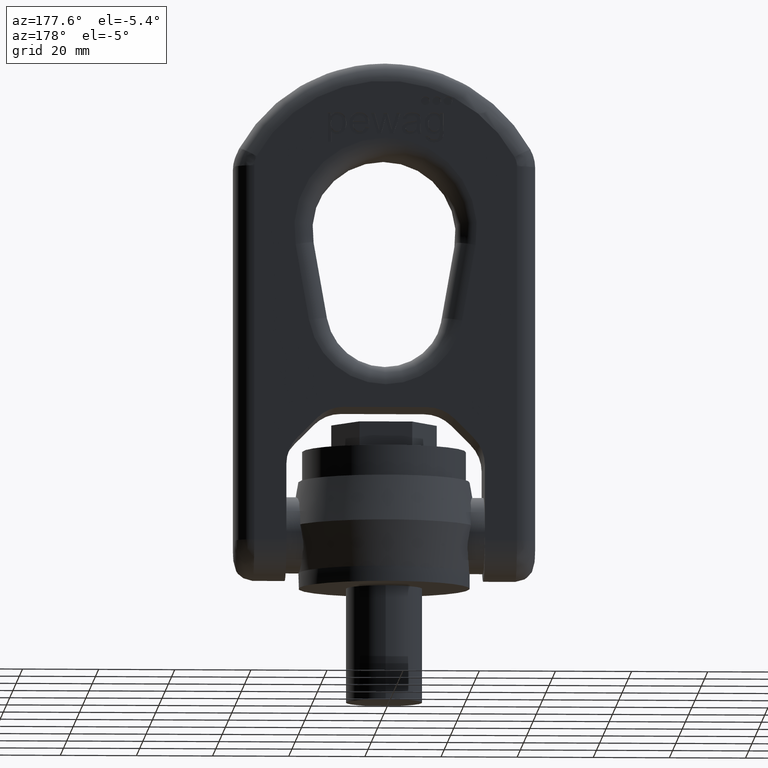
[diagram: clean part render]
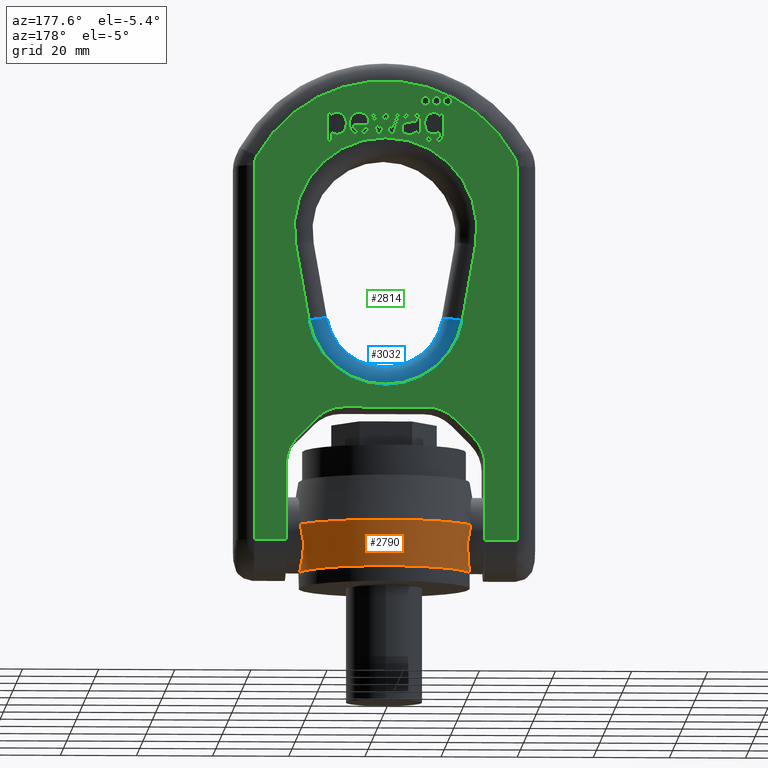
[diagram: same view with three faces highlighted in distinct colors, each labeled with its STEP entity id]
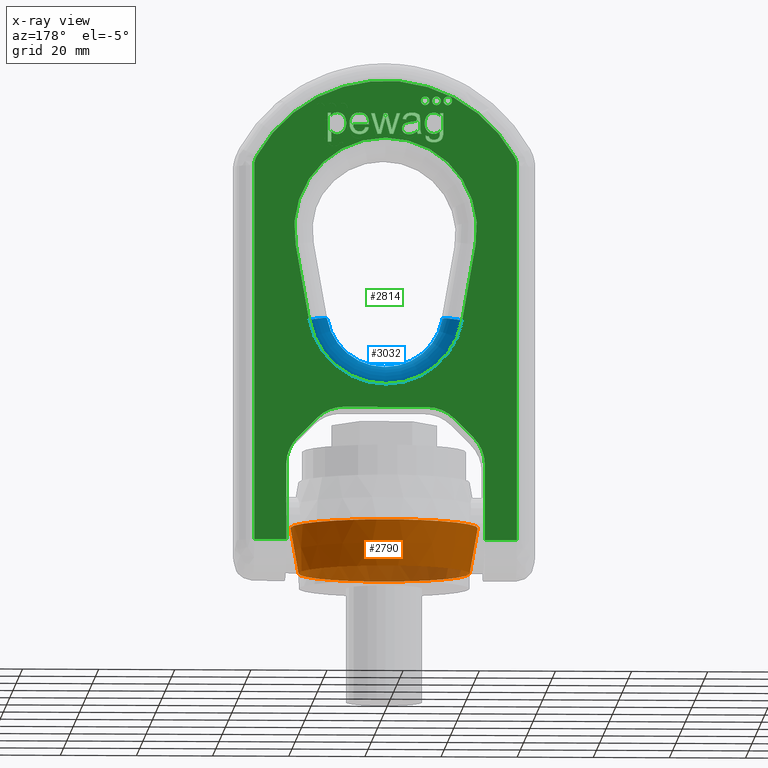
[diagram: x-ray of the same camera — body ghosted, the three highlighted faces saturated]
A machine part, auxiliary view with three faces highlighted in distinct colors.
The next image is the same camera in x-ray (body ghosted, the three faces saturated) — at least one of them is partly hidden behind the body in this view.
Their STEP definitions:

[orange] entity #2790 — the highlighted conical surface has half-angle 10 deg.
#2435=CONICAL_SURFACE('',#5837,22.5,9.99999999999999);
#2790=ADVANCED_FACE('',(#3075,#3076),#2435,.T.);
#3075=FACE_BOUND('',#3144,.T.);
#3076=FACE_BOUND('',#3145,.T.);
#3144=EDGE_LOOP('',(#3440));
#3145=EDGE_LOOP('',(#3441));
#3440=ORIENTED_EDGE('',*,*,#5121,.T.);
#3441=ORIENTED_EDGE('',*,*,#5117,.F.);
#4697=VERTEX_POINT('',#6938);
#4701=VERTEX_POINT('',#6950);
#5117=EDGE_CURVE('',#4697,#4697,#5749,.T.);
#5121=EDGE_CURVE('',#4701,#4701,#5753,.T.);
#5749=CIRCLE('',#5828,22.5);
#5753=CIRCLE('',#5836,24.6159237685016);
#5828=AXIS2_PLACEMENT_3D('',#6937,#6066,#6067);
#5836=AXIS2_PLACEMENT_3D('',#6949,#6082,#6083);
#5837=AXIS2_PLACEMENT_3D('',#6951,#6084,#6085);
#6066=DIRECTION('',(0.,0.,-1.));
#6067=DIRECTION('',(-1.,0.,0.));
#6082=DIRECTION('',(0.,0.,-1.));
#6083=DIRECTION('',(-1.,0.,0.));
#6084=DIRECTION('',(0.,0.,1.));
#6085=DIRECTION('',(1.,0.,1.74495782191693E-17));
#6937=CARTESIAN_POINT('',(0.,0.,4.));
#6938=CARTESIAN_POINT('',(-22.5,0.,4.));
#6949=CARTESIAN_POINT('',(0.,0.,16.));
#6950=CARTESIAN_POINT('',(-24.6159237685016,0.,16.));
#6951=CARTESIAN_POINT('',(0.,0.,4.));

[blue] entity #3032 — the highlighted toroidal blend (fillet) surface has major radius 20.4276 mm and minor (blend) radius 5 mm.
#203=TOROIDAL_SURFACE('',#6050,20.4276486835797,5.);
#2657=FACE_OUTER_BOUND('',#3425,.T.);
#3032=ADVANCED_FACE('',(#2657),#203,.T.);
#3425=EDGE_LOOP('',(#4665,#4666,#4667,#4668));
#4665=ORIENTED_EDGE('',*,*,#5741,.F.);
#4666=ORIENTED_EDGE('',*,*,#5372,.F.);
#4667=ORIENTED_EDGE('',*,*,#5742,.F.);
#4668=ORIENTED_EDGE('',*,*,#5266,.F.);
#4827=VERTEX_POINT('',#7396);
#4830=VERTEX_POINT('',#7401);
#4912=VERTEX_POINT('',#7723);
#4917=VERTEX_POINT('',#7737);
#5266=EDGE_CURVE('',#4830,#4827,#5776,.T.);
#5372=EDGE_CURVE('',#4917,#4912,#5793,.T.);
#5741=EDGE_CURVE('',#4912,#4830,#5819,.T.);
#5742=EDGE_CURVE('',#4827,#4917,#5820,.T.);
#5776=CIRCLE('',#5883,20.4276486835797);
#5793=CIRCLE('',#5907,15.4276486835797);
#5819=CIRCLE('',#6048,5.);
#5820=CIRCLE('',#6049,5.);
#5883=AXIS2_PLACEMENT_3D('',#7402,#6264,#6265);
#5907=AXIS2_PLACEMENT_3D('',#7769,#6367,#6368);
#6048=AXIS2_PLACEMENT_3D('',#9829,#6904,#6905);
#6049=AXIS2_PLACEMENT_3D('',#9830,#6906,#6907);
#6050=AXIS2_PLACEMENT_3D('',#9831,#6908,#6909);
#6264=DIRECTION('',(-2.34291072916505E-15,-1.,0.));
#6265=DIRECTION('',(-1.,2.37777034840012E-15,0.));
#6367=DIRECTION('',(2.34291072916505E-15,1.,0.));
#6368=DIRECTION('',(-1.,2.3612926209738E-15,0.));
#6904=DIRECTION('',(-0.17364817766693,2.40985256287531E-16,0.984807753012208));
#6905=DIRECTION('',(0.984807753012208,0.,0.17364817766693));
#6906=DIRECTION('',(0.17364817766693,-3.61477884431297E-16,0.984807753012208));
#6907=DIRECTION('',(0.984807753012208,0.,-0.17364817766693));
#6908=DIRECTION('',(2.34291072916505E-15,1.,0.));
#6909=DIRECTION('',(-1.,2.35365686642696E-15,0.));
#7396=CARTESIAN_POINT('',(20.117306799399,9.99999999999995,69.8804247156558));
#7401=CARTESIAN_POINT('',(-20.117306799399,10.,69.8804247156558));
#7402=CARTESIAN_POINT('',(1.17145536458252E-14,10.,73.4276486835797));
#7723=CARTESIAN_POINT('',(-15.1932680343379,5.00000000000005,70.7486656039905));
#7737=CARTESIAN_POINT('',(15.1932680343379,4.99999999999998,70.7486656039905));
#7769=CARTESIAN_POINT('',(0.,5.00000000000001,73.4276486835797));
#9829=CARTESIAN_POINT('',(-20.117306799399,5.00000000000005,69.8804247156558));
#9830=CARTESIAN_POINT('',(20.117306799399,4.99999999999995,69.8804247156558));
#9831=CARTESIAN_POINT('',(0.,5.,73.4276486835797));

[green] entity #2814 — the highlighted planar face has unit normal (0, 1, 0).
#337=B_SPLINE_CURVE_WITH_KNOTS('',3,(#7431,#7432,#7433,#7434),
 .UNSPECIFIED.,.F.,.F.,(4,4),(0.,1.),.UNSPECIFIED.);
#338=B_SPLINE_CURVE_WITH_KNOTS('',3,(#7436,#7437,#7438,#7439,#7440,#7441,
#7442,#7443,#7444,#7445),.UNSPECIFIED.,.F.,.F.,(4,2,2,2,4),(0.,0.228358481914094,
0.466434346037294,0.70304530568147,1.),.UNSPECIFIED.);
#339=B_SPLINE_CURVE_WITH_KNOTS('',3,(#7447,#7448,#7449,#7450),
 .UNSPECIFIED.,.F.,.F.,(4,4),(0.,1.),.UNSPECIFIED.);
#340=B_SPLINE_CURVE_WITH_KNOTS('',3,(#7454,#7455,#7456,#7457),
 .UNSPECIFIED.,.F.,.F.,(4,4),(0.,1.),.UNSPECIFIED.);
#341=B_SPLINE_CURVE_WITH_KNOTS('',3,(#7459,#7460,#7461,#7462),
 .UNSPECIFIED.,.F.,.F.,(4,4),(0.,1.),.UNSPECIFIED.);
#342=B_SPLINE_CURVE_WITH_KNOTS('',3,(#7464,#7465,#7466,#7467),
 .UNSPECIFIED.,.F.,.F.,(4,4),(0.,1.),.UNSPECIFIED.);
#343=B_SPLINE_CURVE_WITH_KNOTS('',3,(#7469,#7470,#7471,#7472),
 .UNSPECIFIED.,.F.,.F.,(4,4),(0.,1.),.UNSPECIFIED.);
#344=B_SPLINE_CURVE_WITH_KNOTS('',3,(#7474,#7475,#7476,#7477,#7478,#7479),
 .UNSPECIFIED.,.F.,.F.,(4,2,4),(0.,0.559782608695652,1.),.UNSPECIFIED.);
#345=B_SPLINE_CURVE_WITH_KNOTS('',3,(#7481,#7482,#7483,#7484),
 .UNSPECIFIED.,.F.,.F.,(4,4),(0.,1.),.UNSPECIFIED.);
#346=B_SPLINE_CURVE_WITH_KNOTS('',3,(#7488,#7489,#7490,#7491),
 .UNSPECIFIED.,.F.,.F.,(4,4),(0.,1.),.UNSPECIFIED.);
#347=B_SPLINE_CURVE_WITH_KNOTS('',3,(#7493,#7494,#7495,#7496,#7497,#7498),
 .UNSPECIFIED.,.F.,.F.,(4,2,4),(0.,0.476123595505617,1.),.UNSPECIFIED.);
#348=B_SPLINE_CURVE_WITH_KNOTS('',3,(#7500,#7501,#7502,#7503),
 .UNSPECIFIED.,.F.,.F.,(4,4),(0.,1.),.UNSPECIFIED.);
#349=B_SPLINE_CURVE_WITH_KNOTS('',3,(#7505,#7506,#7507,#7508,#7509,#7510,
#7511,#7512),.UNSPECIFIED.,.F.,.F.,(4,2,2,4),(0.,0.472355769230765,0.730769230769226,
1.),.UNSPECIFIED.);
#350=B_SPLINE_CURVE_WITH_KNOTS('',3,(#7514,#7515,#7516,#7517),
 .UNSPECIFIED.,.F.,.F.,(4,4),(0.,1.),.UNSPECIFIED.);
#351=B_SPLINE_CURVE_WITH_KNOTS('',3,(#7525,#7526,#7527,#7528),
 .UNSPECIFIED.,.F.,.F.,(4,4),(0.,1.),.UNSPECIFIED.);
#352=B_SPLINE_CURVE_WITH_KNOTS('',3,(#7530,#7531,#7532,#7533),
 .UNSPECIFIED.,.F.,.F.,(4,4),(0.,1.),.UNSPECIFIED.);
#353=B_SPLINE_CURVE_WITH_KNOTS('',3,(#7555,#7556,#7557,#7558),
 .UNSPECIFIED.,.F.,.F.,(4,4),(0.,1.),.UNSPECIFIED.);
#354=B_SPLINE_CURVE_WITH_KNOTS('',3,(#7568,#7569,#7570,#7571),
 .UNSPECIFIED.,.F.,.F.,(4,4),(0.,1.),.UNSPECIFIED.);
#355=B_SPLINE_CURVE_WITH_KNOTS('',3,(#7573,#7574,#7575,#7576,#7577,#7578),
 .UNSPECIFIED.,.F.,.F.,(4,2,4),(0.,0.434679334916866,1.),.UNSPECIFIED.);
#356=B_SPLINE_CURVE_WITH_KNOTS('',3,(#7580,#7581,#7582,#7583),
 .UNSPECIFIED.,.F.,.F.,(4,4),(0.,1.),.UNSPECIFIED.);
#357=B_SPLINE_CURVE_WITH_KNOTS('',3,(#7587,#7588,#7589,#7590),
 .UNSPECIFIED.,.F.,.F.,(4,4),(0.,1.),.UNSPECIFIED.);
#358=B_SPLINE_CURVE_WITH_KNOTS('',3,(#7592,#7593,#7594,#7595,#7596,#7597),
 .UNSPECIFIED.,.F.,.F.,(4,2,4),(0.,0.570469798657718,1.),.UNSPECIFIED.);
#359=B_SPLINE_CURVE_WITH_KNOTS('',3,(#7599,#7600,#7601,#7602,#7603,#7604,
#7605,#7606,#7607,#7608,#7609,#7610),.UNSPECIFIED.,.F.,.F.,(4,2,2,2,2,4),
(0.,0.122570626594236,0.245141253188471,0.495637533752419,0.746133814316363,
1.),.UNSPECIFIED.);
#360=B_SPLINE_CURVE_WITH_KNOTS('',3,(#7612,#7613,#7614,#7615),
 .UNSPECIFIED.,.F.,.F.,(4,4),(0.,1.),.UNSPECIFIED.);
#361=B_SPLINE_CURVE_WITH_KNOTS('',3,(#7616,#7617,#7618,#7619),
 .UNSPECIFIED.,.F.,.F.,(4,4),(0.,1.),.UNSPECIFIED.);
#362=B_SPLINE_CURVE_WITH_KNOTS('',3,(#7622,#7623,#7624,#7625),
 .UNSPECIFIED.,.F.,.F.,(4,4),(0.,1.),.UNSPECIFIED.);
#363=B_SPLINE_CURVE_WITH_KNOTS('',3,(#7627,#7628,#7629,#7630,#7631,#7632,
#7633,#7634,#7635,#7636),.UNSPECIFIED.,.F.,.F.,(4,2,2,2,4),(0.,0.230139294836347,
0.492074150143504,0.754009005450665,1.),.UNSPECIFIED.);
#364=B_SPLINE_CURVE_WITH_KNOTS('',3,(#7653,#7654,#7655,#7656,#7657,#7658),
 .UNSPECIFIED.,.F.,.F.,(4,2,4),(0.,0.329498767460969,1.),.UNSPECIFIED.);
#365=B_SPLINE_CURVE_WITH_KNOTS('',3,(#7661,#7662,#7663,#7664,#7665,#7666,
#7667,#7668),.UNSPECIFIED.,.F.,.F.,(4,2,2,4),(0.,0.361028692437346,0.681441656975491,
1.),.UNSPECIFIED.);
#366=B_SPLINE_CURVE_WITH_KNOTS('',3,(#7670,#7671,#7672,#7673),
 .UNSPECIFIED.,.F.,.F.,(4,4),(0.,1.),.UNSPECIFIED.);
#367=B_SPLINE_CURVE_WITH_KNOTS('',3,(#7677,#7678,#7679,#7680),
 .UNSPECIFIED.,.F.,.F.,(4,4),(0.,1.),.UNSPECIFIED.);
#368=B_SPLINE_CURVE_WITH_KNOTS('',3,(#7682,#7683,#7684,#7685,#7686,#7687),
 .UNSPECIFIED.,.F.,.F.,(4,2,4),(0.,0.555803571428572,1.),.UNSPECIFIED.);
#369=B_SPLINE_CURVE_WITH_KNOTS('',3,(#7689,#7690,#7691,#7692,#7693,#7694),
 .UNSPECIFIED.,.F.,.F.,(4,2,4),(0.,0.500000000000013,1.),.UNSPECIFIED.);
#370=B_SPLINE_CURVE_WITH_KNOTS('',3,(#7696,#7697,#7698,#7699,#7700,#7701,
#7702,#7703,#7704,#7705,#7706,#7707,#7708,#7709),.UNSPECIFIED.,.F.,.F.,
(4,2,2,2,2,2,4),(0.,0.15220134604599,0.327187324733596,0.502173303421199,
0.676318003365112,0.850462703309028,1.),.UNSPECIFIED.);
#1766=LINE('',#7041,#2074);
#1769=LINE('',#7050,#2077);
#1771=LINE('',#7059,#2079);
#1772=LINE('',#7063,#2080);
#1815=LINE('',#7395,#2123);
#1816=LINE('',#7400,#2124);
#1817=LINE('',#7406,#2125);
#1818=LINE('',#7407,#2126);
#1819=LINE('',#7411,#2127);
#1820=LINE('',#7415,#2128);
#1821=LINE('',#7419,#2129);
#1822=LINE('',#7422,#2130);
#1823=LINE('',#7423,#2131);
#1824=LINE('',#7428,#2132);
#1825=LINE('',#7452,#2133);
#1826=LINE('',#7486,#2134);
#1827=LINE('',#7518,#2135);
#1828=LINE('',#7521,#2136);
#1829=LINE('',#7523,#2137);
#1830=LINE('',#7535,#2138);
#1831=LINE('',#7537,#2139);
#1832=LINE('',#7539,#2140);
#1833=LINE('',#7541,#2141);
#1834=LINE('',#7543,#2142);
#1835=LINE('',#7545,#2143);
#1836=LINE('',#7547,#2144);
#1837=LINE('',#7549,#2145);
#1838=LINE('',#7551,#2146);
#1839=LINE('',#7553,#2147);
#1840=LINE('',#7560,#2148);
#1841=LINE('',#7562,#2149);
#1842=LINE('',#7564,#2150);
#1843=LINE('',#7565,#2151);
#1844=LINE('',#7585,#2152);
#1845=LINE('',#7638,#2153);
#1846=LINE('',#7640,#2154);
#1847=LINE('',#7642,#2155);
#1848=LINE('',#7644,#2156);
#1849=LINE('',#7646,#2157);
#1850=LINE('',#7648,#2158);
#1851=LINE('',#7650,#2159);
#1852=LINE('',#7675,#2160);
#1853=LINE('',#7711,#2161);
#1854=LINE('',#7713,#2162);
#1855=LINE('',#7715,#2163);
#2074=VECTOR('',#6167,1.);
#2077=VECTOR('',#6174,1.);
#2079=VECTOR('',#6182,1.);
#2080=VECTOR('',#6187,1.);
#2123=VECTOR('',#6260,1.);
#2124=VECTOR('',#6263,1.);
#2125=VECTOR('',#6268,1.);
#2126=VECTOR('',#6269,1.);
#2127=VECTOR('',#6272,1.);
#2128=VECTOR('',#6275,1.);
#2129=VECTOR('',#6278,1.);
#2130=VECTOR('',#6281,1.);
#2131=VECTOR('',#6282,1.);
#2132=VECTOR('',#6287,1.);
#2133=VECTOR('',#6288,1.);
#2134=VECTOR('',#6289,1.);
#2135=VECTOR('',#6290,1.);
#2136=VECTOR('',#6291,1.);
#2137=VECTOR('',#6292,1.);
#2138=VECTOR('',#6293,1.);
#2139=VECTOR('',#6294,1.);
#2140=VECTOR('',#6295,1.);
#2141=VECTOR('',#6296,1.);
#2142=VECTOR('',#6297,1.);
#2143=VECTOR('',#6298,1.);
#2144=VECTOR('',#6299,1.);
#2145=VECTOR('',#6300,1.);
#2146=VECTOR('',#6301,1.);
#2147=VECTOR('',#6302,1.);
#2148=VECTOR('',#6303,1.);
#2149=VECTOR('',#6304,1.);
#2150=VECTOR('',#6305,1.);
#2151=VECTOR('',#6306,1.);
#2152=VECTOR('',#6307,1.);
#2153=VECTOR('',#6308,1.);
#2154=VECTOR('',#6309,1.);
#2155=VECTOR('',#6310,1.);
#2156=VECTOR('',#6311,1.);
#2157=VECTOR('',#6312,1.);
#2158=VECTOR('',#6313,1.);
#2159=VECTOR('',#6314,1.);
#2160=VECTOR('',#6317,1.);
#2161=VECTOR('',#6318,1.);
#2162=VECTOR('',#6319,1.);
#2163=VECTOR('',#6320,1.);
#2686=PLANE('',#5894);
#2814=ADVANCED_FACE('',(#3097,#3098,#3099,#3100,#3101,#3102,#3103,#3104,
#3105,#3106),#2686,.T.);
#3097=FACE_BOUND('',#3183,.T.);
#3098=FACE_BOUND('',#3184,.T.);
#3099=FACE_BOUND('',#3185,.T.);
#3100=FACE_BOUND('',#3186,.T.);
#3101=FACE_BOUND('',#3187,.T.);
#3102=FACE_BOUND('',#3188,.T.);
#3103=FACE_BOUND('',#3189,.T.);
#3104=FACE_BOUND('',#3190,.T.);
#3105=FACE_BOUND('',#3191,.T.);
#3106=FACE_BOUND('',#3192,.T.);
#3183=EDGE_LOOP('',(#3628,#3629,#3630,#3631));
#3184=EDGE_LOOP('',(#3632,#3633,#3634,#3635,#3636,#3637,#3638,#3639,#3640,
#3641,#3642,#3643,#3644,#3645,#3646,#3647,#3648,#3649));
#3185=EDGE_LOOP('',(#3650,#3651,#3652,#3653,#3654,#3655,#3656,#3657,#3658,
#3659,#3660,#3661,#3662,#3663,#3664,#3665,#3666));
#3186=EDGE_LOOP('',(#3667,#3668,#3669,#3670,#3671,#3672,#3673,#3674,#3675,
#3676,#3677,#3678,#3679,#3680,#3681,#3682,#3683,#3684,#3685));
#3187=EDGE_LOOP('',(#3686,#3687,#3688,#3689,#3690,#3691,#3692,#3693,#3694));
#3188=EDGE_LOOP('',(#3695,#3696,#3697,#3698,#3699,#3700,#3701,#3702,#3703,
#3704));
#3189=EDGE_LOOP('',(#3705));
#3190=EDGE_LOOP('',(#3706,#3707,#3708,#3709,#3710,#3711,#3712,#3713,#3714,
#3715,#3716));
#3191=EDGE_LOOP('',(#3717));
#3192=EDGE_LOOP('',(#3718));
#3628=ORIENTED_EDGE('',*,*,#5263,.T.);
#3629=ORIENTED_EDGE('',*,*,#5264,.T.);
#3630=ORIENTED_EDGE('',*,*,#5265,.T.);
#3631=ORIENTED_EDGE('',*,*,#5266,.T.);
#3632=ORIENTED_EDGE('',*,*,#5267,.T.);
#3633=ORIENTED_EDGE('',*,*,#5268,.T.);
#3634=ORIENTED_EDGE('',*,*,#5173,.T.);
#3635=ORIENTED_EDGE('',*,*,#5167,.T.);
#3636=ORIENTED_EDGE('',*,*,#5269,.T.);
#3637=ORIENTED_EDGE('',*,*,#5270,.T.);
#3638=ORIENTED_EDGE('',*,*,#5271,.T.);
#3639=ORIENTED_EDGE('',*,*,#5272,.T.);
#3640=ORIENTED_EDGE('',*,*,#5273,.T.);
#3641=ORIENTED_EDGE('',*,*,#5274,.T.);
#3642=ORIENTED_EDGE('',*,*,#5275,.T.);
#3643=ORIENTED_EDGE('',*,*,#5276,.T.);
#3644=ORIENTED_EDGE('',*,*,#5163,.T.);
#3645=ORIENTED_EDGE('',*,*,#5277,.T.);
#3646=ORIENTED_EDGE('',*,*,#5171,.T.);
#3647=ORIENTED_EDGE('',*,*,#5278,.T.);
#3648=ORIENTED_EDGE('',*,*,#5279,.T.);
#3649=ORIENTED_EDGE('',*,*,#5280,.T.);
#3650=ORIENTED_EDGE('',*,*,#5281,.F.);
#3651=ORIENTED_EDGE('',*,*,#5282,.F.);
#3652=ORIENTED_EDGE('',*,*,#5283,.F.);
#3653=ORIENTED_EDGE('',*,*,#5284,.F.);
#3654=ORIENTED_EDGE('',*,*,#5285,.F.);
#3655=ORIENTED_EDGE('',*,*,#5286,.F.);
#3656=ORIENTED_EDGE('',*,*,#5287,.F.);
#3657=ORIENTED_EDGE('',*,*,#5288,.F.);
#3658=ORIENTED_EDGE('',*,*,#5289,.F.);
#3659=ORIENTED_EDGE('',*,*,#5290,.F.);
#3660=ORIENTED_EDGE('',*,*,#5291,.F.);
#3661=ORIENTED_EDGE('',*,*,#5292,.F.);
#3662=ORIENTED_EDGE('',*,*,#5293,.F.);
#3663=ORIENTED_EDGE('',*,*,#5294,.F.);
#3664=ORIENTED_EDGE('',*,*,#5295,.F.);
#3665=ORIENTED_EDGE('',*,*,#5296,.F.);
#3666=ORIENTED_EDGE('',*,*,#5297,.F.);
#3667=ORIENTED_EDGE('',*,*,#5298,.F.);
#3668=ORIENTED_EDGE('',*,*,#5299,.F.);
#3669=ORIENTED_EDGE('',*,*,#5300,.F.);
#3670=ORIENTED_EDGE('',*,*,#5301,.F.);
#3671=ORIENTED_EDGE('',*,*,#5302,.F.);
#3672=ORIENTED_EDGE('',*,*,#5303,.F.);
#3673=ORIENTED_EDGE('',*,*,#5304,.F.);
#3674=ORIENTED_EDGE('',*,*,#5305,.F.);
#3675=ORIENTED_EDGE('',*,*,#5306,.F.);
#3676=ORIENTED_EDGE('',*,*,#5307,.F.);
#3677=ORIENTED_EDGE('',*,*,#5308,.F.);
#3678=ORIENTED_EDGE('',*,*,#5309,.F.);
#3679=ORIENTED_EDGE('',*,*,#5310,.F.);
#3680=ORIENTED_EDGE('',*,*,#5311,.F.);
#3681=ORIENTED_EDGE('',*,*,#5312,.F.);
#3682=ORIENTED_EDGE('',*,*,#5313,.F.);
#3683=ORIENTED_EDGE('',*,*,#5314,.F.);
#3684=ORIENTED_EDGE('',*,*,#5315,.F.);
#3685=ORIENTED_EDGE('',*,*,#5316,.F.);
#3686=ORIENTED_EDGE('',*,*,#5317,.F.);
#3687=ORIENTED_EDGE('',*,*,#5318,.F.);
#3688=ORIENTED_EDGE('',*,*,#5319,.F.);
#3689=ORIENTED_EDGE('',*,*,#5320,.F.);
#3690=ORIENTED_EDGE('',*,*,#5321,.F.);
#3691=ORIENTED_EDGE('',*,*,#5322,.F.);
#3692=ORIENTED_EDGE('',*,*,#5323,.F.);
#3693=ORIENTED_EDGE('',*,*,#5324,.F.);
#3694=ORIENTED_EDGE('',*,*,#5325,.F.);
#3695=ORIENTED_EDGE('',*,*,#5326,.F.);
#3696=ORIENTED_EDGE('',*,*,#5327,.F.);
#3697=ORIENTED_EDGE('',*,*,#5328,.F.);
#3698=ORIENTED_EDGE('',*,*,#5329,.F.);
#3699=ORIENTED_EDGE('',*,*,#5330,.F.);
#3700=ORIENTED_EDGE('',*,*,#5331,.F.);
#3701=ORIENTED_EDGE('',*,*,#5332,.F.);
#3702=ORIENTED_EDGE('',*,*,#5333,.F.);
#3703=ORIENTED_EDGE('',*,*,#5334,.F.);
#3704=ORIENTED_EDGE('',*,*,#5335,.F.);
#3705=ORIENTED_EDGE('',*,*,#5336,.F.);
#3706=ORIENTED_EDGE('',*,*,#5337,.F.);
#3707=ORIENTED_EDGE('',*,*,#5338,.F.);
#3708=ORIENTED_EDGE('',*,*,#5339,.F.);
#3709=ORIENTED_EDGE('',*,*,#5340,.F.);
#3710=ORIENTED_EDGE('',*,*,#5341,.F.);
#3711=ORIENTED_EDGE('',*,*,#5342,.F.);
#3712=ORIENTED_EDGE('',*,*,#5343,.F.);
#3713=ORIENTED_EDGE('',*,*,#5344,.F.);
#3714=ORIENTED_EDGE('',*,*,#5345,.F.);
#3715=ORIENTED_EDGE('',*,*,#5346,.F.);
#3716=ORIENTED_EDGE('',*,*,#5347,.F.);
#3717=ORIENTED_EDGE('',*,*,#5348,.F.);
#3718=ORIENTED_EDGE('',*,*,#5349,.F.);
#4731=VERTEX_POINT('',#7040);
#4732=VERTEX_POINT('',#7042);
#4735=VERTEX_POINT('',#7049);
#4736=VERTEX_POINT('',#7051);
#4739=VERTEX_POINT('',#7058);
#4740=VERTEX_POINT('',#7060);
#4741=VERTEX_POINT('',#7064);
#4827=VERTEX_POINT('',#7396);
#4828=VERTEX_POINT('',#7397);
#4829=VERTEX_POINT('',#7399);
#4830=VERTEX_POINT('',#7401);
#4831=VERTEX_POINT('',#7404);
#4832=VERTEX_POINT('',#7405);
#4833=VERTEX_POINT('',#7408);
#4834=VERTEX_POINT('',#7410);
#4835=VERTEX_POINT('',#7412);
#4836=VERTEX_POINT('',#7414);
#4837=VERTEX_POINT('',#7416);
#4838=VERTEX_POINT('',#7418);
#4839=VERTEX_POINT('',#7420);
#4840=VERTEX_POINT('',#7424);
#4841=VERTEX_POINT('',#7426);
#4842=VERTEX_POINT('',#7429);
#4843=VERTEX_POINT('',#7430);
#4844=VERTEX_POINT('',#7435);
#4845=VERTEX_POINT('',#7446);
#4846=VERTEX_POINT('',#7451);
#4847=VERTEX_POINT('',#7453);
#4848=VERTEX_POINT('',#7458);
#4849=VERTEX_POINT('',#7463);
#4850=VERTEX_POINT('',#7468);
#4851=VERTEX_POINT('',#7473);
#4852=VERTEX_POINT('',#7480);
#4853=VERTEX_POINT('',#7485);
#4854=VERTEX_POINT('',#7487);
#4855=VERTEX_POINT('',#7492);
#4856=VERTEX_POINT('',#7499);
#4857=VERTEX_POINT('',#7504);
#4858=VERTEX_POINT('',#7513);
#4859=VERTEX_POINT('',#7519);
#4860=VERTEX_POINT('',#7520);
#4861=VERTEX_POINT('',#7522);
#4862=VERTEX_POINT('',#7524);
#4863=VERTEX_POINT('',#7529);
#4864=VERTEX_POINT('',#7534);
#4865=VERTEX_POINT('',#7536);
#4866=VERTEX_POINT('',#7538);
#4867=VERTEX_POINT('',#7540);
#4868=VERTEX_POINT('',#7542);
#4869=VERTEX_POINT('',#7544);
#4870=VERTEX_POINT('',#7546);
#4871=VERTEX_POINT('',#7548);
#4872=VERTEX_POINT('',#7550);
#4873=VERTEX_POINT('',#7552);
#4874=VERTEX_POINT('',#7554);
#4875=VERTEX_POINT('',#7559);
#4876=VERTEX_POINT('',#7561);
#4877=VERTEX_POINT('',#7563);
#4878=VERTEX_POINT('',#7566);
#4879=VERTEX_POINT('',#7567);
#4880=VERTEX_POINT('',#7572);
#4881=VERTEX_POINT('',#7579);
#4882=VERTEX_POINT('',#7584);
#4883=VERTEX_POINT('',#7586);
#4884=VERTEX_POINT('',#7591);
#4885=VERTEX_POINT('',#7598);
#4886=VERTEX_POINT('',#7611);
#4887=VERTEX_POINT('',#7620);
#4888=VERTEX_POINT('',#7621);
#4889=VERTEX_POINT('',#7626);
#4890=VERTEX_POINT('',#7637);
#4891=VERTEX_POINT('',#7639);
#4892=VERTEX_POINT('',#7641);
#4893=VERTEX_POINT('',#7643);
#4894=VERTEX_POINT('',#7645);
#4895=VERTEX_POINT('',#7647);
#4896=VERTEX_POINT('',#7649);
#4897=VERTEX_POINT('',#7652);
#4898=VERTEX_POINT('',#7659);
#4899=VERTEX_POINT('',#7660);
#4900=VERTEX_POINT('',#7669);
#4901=VERTEX_POINT('',#7674);
#4902=VERTEX_POINT('',#7676);
#4903=VERTEX_POINT('',#7681);
#4904=VERTEX_POINT('',#7688);
#4905=VERTEX_POINT('',#7695);
#4906=VERTEX_POINT('',#7710);
#4907=VERTEX_POINT('',#7712);
#4908=VERTEX_POINT('',#7714);
#4909=VERTEX_POINT('',#7717);
#4910=VERTEX_POINT('',#7719);
#5163=EDGE_CURVE('',#4732,#4731,#1766,.T.);
#5167=EDGE_CURVE('',#4736,#4735,#1769,.T.);
#5171=EDGE_CURVE('',#4740,#4739,#1771,.T.);
#5173=EDGE_CURVE('',#4741,#4736,#1772,.T.);
#5263=EDGE_CURVE('',#4827,#4828,#1815,.T.);
#5264=EDGE_CURVE('',#4828,#4829,#5775,.T.);
#5265=EDGE_CURVE('',#4829,#4830,#1816,.T.);
#5266=EDGE_CURVE('',#4830,#4827,#5776,.T.);
#5267=EDGE_CURVE('',#4831,#4832,#5777,.T.);
#5268=EDGE_CURVE('',#4832,#4741,#1817,.T.);
#5269=EDGE_CURVE('',#4735,#4833,#1818,.T.);
#5270=EDGE_CURVE('',#4833,#4834,#5778,.T.);
#5271=EDGE_CURVE('',#4834,#4835,#1819,.T.);
#5272=EDGE_CURVE('',#4835,#4836,#5779,.T.);
#5273=EDGE_CURVE('',#4836,#4837,#1820,.T.);
#5274=EDGE_CURVE('',#4837,#4838,#5780,.T.);
#5275=EDGE_CURVE('',#4838,#4839,#1821,.T.);
#5276=EDGE_CURVE('',#4839,#4732,#5781,.T.);
#5277=EDGE_CURVE('',#4731,#4740,#1822,.T.);
#5278=EDGE_CURVE('',#4739,#4840,#1823,.T.);
#5279=EDGE_CURVE('',#4840,#4841,#5782,.T.);
#5280=EDGE_CURVE('',#4841,#4831,#5783,.T.);
#5281=EDGE_CURVE('',#4842,#4843,#1824,.T.);
#5282=EDGE_CURVE('',#4844,#4842,#337,.T.);
#5283=EDGE_CURVE('',#4845,#4844,#338,.T.);
#5284=EDGE_CURVE('',#4846,#4845,#339,.T.);
#5285=EDGE_CURVE('',#4847,#4846,#1825,.T.);
#5286=EDGE_CURVE('',#4848,#4847,#340,.T.);
#5287=EDGE_CURVE('',#4849,#4848,#341,.T.);
#5288=EDGE_CURVE('',#4850,#4849,#342,.T.);
#5289=EDGE_CURVE('',#4851,#4850,#343,.T.);
#5290=EDGE_CURVE('',#4852,#4851,#344,.T.);
#5291=EDGE_CURVE('',#4853,#4852,#345,.T.);
#5292=EDGE_CURVE('',#4854,#4853,#1826,.T.);
#5293=EDGE_CURVE('',#4855,#4854,#346,.T.);
#5294=EDGE_CURVE('',#4856,#4855,#347,.T.);
#5295=EDGE_CURVE('',#4857,#4856,#348,.T.);
#5296=EDGE_CURVE('',#4858,#4857,#349,.T.);
#5297=EDGE_CURVE('',#4843,#4858,#350,.T.);
#5298=EDGE_CURVE('',#4859,#4860,#1827,.T.);
#5299=EDGE_CURVE('',#4861,#4859,#1828,.T.);
#5300=EDGE_CURVE('',#4862,#4861,#1829,.T.);
#5301=EDGE_CURVE('',#4863,#4862,#351,.T.);
#5302=EDGE_CURVE('',#4864,#4863,#352,.T.);
#5303=EDGE_CURVE('',#4865,#4864,#1830,.T.);
#5304=EDGE_CURVE('',#4866,#4865,#1831,.T.);
#5305=EDGE_CURVE('',#4867,#4866,#1832,.T.);
#5306=EDGE_CURVE('',#4868,#4867,#1833,.T.);
#5307=EDGE_CURVE('',#4869,#4868,#1834,.T.);
#5308=EDGE_CURVE('',#4870,#4869,#1835,.T.);
#5309=EDGE_CURVE('',#4871,#4870,#1836,.T.);
#5310=EDGE_CURVE('',#4872,#4871,#1837,.T.);
#5311=EDGE_CURVE('',#4873,#4872,#1838,.T.);
#5312=EDGE_CURVE('',#4874,#4873,#1839,.T.);
#5313=EDGE_CURVE('',#4875,#4874,#353,.T.);
#5314=EDGE_CURVE('',#4876,#4875,#1840,.T.);
#5315=EDGE_CURVE('',#4877,#4876,#1841,.T.);
#5316=EDGE_CURVE('',#4860,#4877,#1842,.T.);
#5317=EDGE_CURVE('',#4878,#4879,#1843,.T.);
#5318=EDGE_CURVE('',#4880,#4878,#354,.T.);
#5319=EDGE_CURVE('',#4881,#4880,#355,.T.);
#5320=EDGE_CURVE('',#4882,#4881,#356,.T.);
#5321=EDGE_CURVE('',#4883,#4882,#1844,.T.);
#5322=EDGE_CURVE('',#4884,#4883,#357,.T.);
#5323=EDGE_CURVE('',#4885,#4884,#358,.T.);
#5324=EDGE_CURVE('',#4886,#4885,#359,.T.);
#5325=EDGE_CURVE('',#4879,#4886,#360,.T.);
#5326=EDGE_CURVE('',#4887,#4888,#361,.T.);
#5327=EDGE_CURVE('',#4889,#4887,#362,.T.);
#5328=EDGE_CURVE('',#4890,#4889,#363,.T.);
#5329=EDGE_CURVE('',#4891,#4890,#1845,.T.);
#5330=EDGE_CURVE('',#4892,#4891,#1846,.T.);
#5331=EDGE_CURVE('',#4893,#4892,#1847,.T.);
#5332=EDGE_CURVE('',#4894,#4893,#1848,.T.);
#5333=EDGE_CURVE('',#4895,#4894,#1849,.T.);
#5334=EDGE_CURVE('',#4896,#4895,#1850,.T.);
#5335=EDGE_CURVE('',#4888,#4896,#1851,.T.);
#5336=EDGE_CURVE('',#4897,#4897,#5784,.T.);
#5337=EDGE_CURVE('',#4898,#4899,#364,.T.);
#5338=EDGE_CURVE('',#4900,#4898,#365,.T.);
#5339=EDGE_CURVE('',#4901,#4900,#366,.T.);
#5340=EDGE_CURVE('',#4902,#4901,#1852,.T.);
#5341=EDGE_CURVE('',#4903,#4902,#367,.T.);
#5342=EDGE_CURVE('',#4904,#4903,#368,.T.);
#5343=EDGE_CURVE('',#4905,#4904,#369,.T.);
#5344=EDGE_CURVE('',#4906,#4905,#370,.T.);
#5345=EDGE_CURVE('',#4907,#4906,#1853,.T.);
#5346=EDGE_CURVE('',#4908,#4907,#1854,.T.);
#5347=EDGE_CURVE('',#4899,#4908,#1855,.T.);
#5348=EDGE_CURVE('',#4909,#4909,#5785,.T.);
#5349=EDGE_CURVE('',#4910,#4910,#5786,.T.);
#5775=CIRCLE('',#5882,24.);
#5776=CIRCLE('',#5883,20.4276486835797);
#5777=CIRCLE('',#5884,5.);
#5778=CIRCLE('',#5885,10.);
#5779=CIRCLE('',#5886,10.);
#5780=CIRCLE('',#5887,10.);
#5781=CIRCLE('',#5888,10.);
#5782=CIRCLE('',#5889,5.);
#5783=CIRCLE('',#5890,38.705);
#5784=CIRCLE('',#5891,1.14);
#5785=CIRCLE('',#5892,1.14);
#5786=CIRCLE('',#5893,1.14);
#5882=AXIS2_PLACEMENT_3D('',#7398,#6261,#6262);
#5883=AXIS2_PLACEMENT_3D('',#7402,#6264,#6265);
#5884=AXIS2_PLACEMENT_3D('',#7403,#6266,#6267);
#5885=AXIS2_PLACEMENT_3D('',#7409,#6270,#6271);
#5886=AXIS2_PLACEMENT_3D('',#7413,#6273,#6274);
#5887=AXIS2_PLACEMENT_3D('',#7417,#6276,#6277);
#5888=AXIS2_PLACEMENT_3D('',#7421,#6279,#6280);
#5889=AXIS2_PLACEMENT_3D('',#7425,#6283,#6284);
#5890=AXIS2_PLACEMENT_3D('',#7427,#6285,#6286);
#5891=AXIS2_PLACEMENT_3D('',#7651,#6315,#6316);
#5892=AXIS2_PLACEMENT_3D('',#7716,#6321,#6322);
#5893=AXIS2_PLACEMENT_3D('',#7718,#6323,#6324);
#5894=AXIS2_PLACEMENT_3D('',#7720,#6325,#6326);
#6167=DIRECTION('',(-3.85494105772624E-16,9.03178276444566E-31,-1.));
#6174=DIRECTION('',(-3.85494105772624E-16,9.03178276444566E-31,1.));
#6182=DIRECTION('',(-1.,2.34291072916505E-15,1.14184330064296E-15));
#6187=DIRECTION('',(-1.,2.34291072916505E-15,1.14184330064296E-15));
#6260=DIRECTION('',(0.17364817766693,-4.0684217855581E-16,0.984807753012208));
#6261=DIRECTION('',(-2.34291072916505E-15,-1.,0.));
#6262=DIRECTION('',(-1.,2.31296463463574E-15,0.));
#6263=DIRECTION('',(0.17364817766693,-4.0684217855581E-16,-0.984807753012208));
#6264=DIRECTION('',(-2.34291072916505E-15,-1.,0.));
#6265=DIRECTION('',(-1.,2.37777034840012E-15,0.));
#6266=DIRECTION('',(2.34291072916505E-15,1.,0.));
#6267=DIRECTION('',(-1.,2.42861286636753E-15,0.));
#6268=DIRECTION('',(1.87537673078574E-16,-4.39384026378438E-31,-1.));
#6269=DIRECTION('',(-3.85494105772624E-16,9.03178276444566E-31,1.));
#6270=DIRECTION('',(-2.34291072916505E-15,-1.,0.));
#6271=DIRECTION('',(-1.,2.42861286636753E-15,0.));
#6272=DIRECTION('',(-0.707106781186548,1.65668806430733E-15,0.707106781186547));
#6273=DIRECTION('',(-2.34291072916505E-15,-1.,0.));
#6274=DIRECTION('',(-1.,2.42861286636753E-15,0.));
#6275=DIRECTION('',(-1.,2.34291072916505E-15,0.));
#6276=DIRECTION('',(-2.34291072916505E-15,-1.,0.));
#6277=DIRECTION('',(-1.,2.42861286636753E-15,0.));
#6278=DIRECTION('',(-0.707106781186548,1.65668806430733E-15,-0.707106781186547));
#6279=DIRECTION('',(-2.34291072916505E-15,-1.,0.));
#6280=DIRECTION('',(-1.,2.42861286636753E-15,0.));
#6281=DIRECTION('',(-3.85494105772624E-16,9.03178276444566E-31,-1.));
#6282=DIRECTION('',(1.87537673078574E-16,-4.39384026378438E-31,1.));
#6283=DIRECTION('',(2.34291072916505E-15,1.,0.));
#6284=DIRECTION('',(-1.,2.42861286636753E-15,0.));
#6285=DIRECTION('',(2.34291072916505E-15,1.,0.));
#6286=DIRECTION('',(-1.,2.33059348277468E-15,0.));
#6287=DIRECTION('',(-1.,2.34291072916505E-15,0.));
#6288=DIRECTION('',(0.989370262977939,-2.31800620424786E-15,-0.145418302613407));
#6289=DIRECTION('',(-0.991928985003782,2.32400106153516E-15,-0.126794671454941));
#6290=DIRECTION('',(-0.304245570453575,7.12820211316622E-16,0.952593634693923));
#6291=DIRECTION('',(-1.,2.34291072916505E-15,0.));
#6292=DIRECTION('',(-0.259135455314437,6.07131238563265E-16,-0.965840988879111));
#6293=DIRECTION('',(-1.,2.34291072916505E-15,0.));
#6294=DIRECTION('',(-0.254367653151694,5.95960703721637E-16,0.967107593305988));
#6295=DIRECTION('',(-1.,2.34291072916505E-15,0.));
#6296=DIRECTION('',(-0.298320908470946,6.98939257190843E-16,-0.954465628280594));
#6297=DIRECTION('',(1.,-2.34291072916505E-15,0.));
#6298=DIRECTION('',(0.269463722620021,-6.31329446847201E-16,0.963010541059526));
#6299=DIRECTION('',(0.247736970080359,-5.80425605212113E-16,-0.968827329122896));
#6300=DIRECTION('',(0.266059563516179,-6.23353805959026E-16,-0.963956590652079));
#6301=DIRECTION('',(1.,-2.34291072916505E-15,0.));
#6302=DIRECTION('',(0.253070161005814,-5.92920795452048E-16,0.96744792811215));
#6303=DIRECTION('',(1.,-2.34291072916505E-15,0.));
#6304=DIRECTION('',(0.287282618696353,-6.73077529646316E-16,-0.957845862858407));
#6305=DIRECTION('',(1.,-2.34291072916505E-15,0.));
#6306=DIRECTION('',(-1.,2.34291072916505E-15,0.));
#6307=DIRECTION('',(0.992687288142564,-2.32577769809497E-15,0.120714323757214));
#6308=DIRECTION('',(-1.,2.34291072916505E-15,0.));
#6309=DIRECTION('',(0.,0.,1.));
#6310=DIRECTION('',(-1.,2.34291072916505E-15,0.));
#6311=DIRECTION('',(0.,0.,-1.));
#6312=DIRECTION('',(1.,-2.34291072916505E-15,0.));
#6313=DIRECTION('',(0.,0.,1.));
#6314=DIRECTION('',(1.,-2.34291072916505E-15,0.));
#6315=DIRECTION('',(2.34291072916505E-15,1.,0.));
#6316=DIRECTION('',(0.,0.,-1.));
#6317=DIRECTION('',(0.988666662925714,-2.31635773213646E-15,0.150127377980608));
#6318=DIRECTION('',(1.,-2.34291072916505E-15,0.));
#6319=DIRECTION('',(0.,0.,-1.));
#6320=DIRECTION('',(1.,-2.34291072916505E-15,0.));
#6321=DIRECTION('',(2.34291072916505E-15,1.,0.));
#6322=DIRECTION('',(0.,0.,-1.));
#6323=DIRECTION('',(2.34291072916505E-15,1.,0.));
#6324=DIRECTION('',(0.,0.,-1.));
#6325=DIRECTION('',(2.34291072916505E-15,1.,0.));
#6326=DIRECTION('',(0.,0.,-1.));
#7040=CARTESIAN_POINT('',(-26.07,10.0000000000001,14.));
#7041=CARTESIAN_POINT('',(-26.07,10.0000000000001,94.295));
#7042=CARTESIAN_POINT('',(-26.07,10.0000000000001,31.857864376269));
#7049=CARTESIAN_POINT('',(26.07,9.99999999999994,14.));
#7050=CARTESIAN_POINT('',(26.07,9.99999999999994,94.295));
#7051=CARTESIAN_POINT('',(26.07,9.99999999999994,12.));
#7058=CARTESIAN_POINT('',(-34.5,10.0000000000001,12.));
#7059=CARTESIAN_POINT('',(39.5,9.99999999999991,12.));
#7060=CARTESIAN_POINT('',(-26.07,10.0000000000001,12.));
#7063=CARTESIAN_POINT('',(39.5,9.99999999999991,12.));
#7064=CARTESIAN_POINT('',(34.5,9.99999999999992,12.));
#7395=CARTESIAN_POINT('',(23.635386072293,9.99999999999994,89.8324437359937));
#7396=CARTESIAN_POINT('',(20.117306799399,9.99999999999995,69.8804247156558));
#7397=CARTESIAN_POINT('',(23.635386072293,9.99999999999994,89.8324437359937));
#7398=CARTESIAN_POINT('',(1.17145536458252E-14,10.,94.));
#7399=CARTESIAN_POINT('',(-23.635386072293,10.0000000000001,89.8324437359937));
#7400=CARTESIAN_POINT('',(-20.117306799399,10.,69.8804247156558));
#7401=CARTESIAN_POINT('',(-20.117306799399,10.,69.8804247156558));
#7402=CARTESIAN_POINT('',(1.17145536458252E-14,10.,73.4276486835797));
#7403=CARTESIAN_POINT('',(29.5,9.99999999999993,110.597669259971));
#7404=CARTESIAN_POINT('',(33.8762053107848,9.99999999999992,113.016104100495));
#7405=CARTESIAN_POINT('',(34.5,9.99999999999992,110.597669259971));
#7406=CARTESIAN_POINT('',(34.5,9.99999999999992,12.));
#7407=CARTESIAN_POINT('',(26.07,9.99999999999994,94.295));
#7408=CARTESIAN_POINT('',(26.07,9.99999999999994,31.857864376269));
#7409=CARTESIAN_POINT('',(16.07,9.99999999999996,31.857864376269));
#7410=CARTESIAN_POINT('',(23.1410678118655,9.99999999999995,38.9289321881345));
#7411=CARTESIAN_POINT('',(-16.1125,10.,78.1824999999999));
#7412=CARTESIAN_POINT('',(17.9989321881345,9.99999999999996,44.0710678118655));
#7413=CARTESIAN_POINT('',(10.927864376269,9.99999999999997,37.));
#7414=CARTESIAN_POINT('',(10.927864376269,9.99999999999997,47.));
#7415=CARTESIAN_POINT('',(2.34291072916505E-14,10.,47.));
#7416=CARTESIAN_POINT('',(-10.927864376269,10.,47.));
#7417=CARTESIAN_POINT('',(-10.927864376269,10.,37.));
#7418=CARTESIAN_POINT('',(-17.9989321881345,10.,44.0710678118655));
#7419=CARTESIAN_POINT('',(16.1125000000001,9.99999999999996,78.1824999999999));
#7420=CARTESIAN_POINT('',(-23.1410678118655,10.0000000000001,38.9289321881345));
#7421=CARTESIAN_POINT('',(-16.07,10.,31.857864376269));
#7422=CARTESIAN_POINT('',(-26.07,10.0000000000001,94.295));
#7423=CARTESIAN_POINT('',(-34.5,10.0000000000001,110.597669259971));
#7424=CARTESIAN_POINT('',(-34.5,10.0000000000001,110.597669259971));
#7425=CARTESIAN_POINT('',(-29.5,10.0000000000001,110.597669259971));
#7426=CARTESIAN_POINT('',(-33.8762053107847,10.0000000000001,113.016104100495));
#7427=CARTESIAN_POINT('',(1.17145536458252E-14,10.,94.295));
#7428=CARTESIAN_POINT('',(2.34291072916505E-14,10.,119.));
#7429=CARTESIAN_POINT('',(-8.46400728834513,10.,119.));
#7430=CARTESIAN_POINT('',(-9.46105290557686,10.,119.));
#7431=CARTESIAN_POINT('',(-8.26815904210319,10.,119.678536710156));
#7432=CARTESIAN_POINT('',(-8.30574607926073,10.,119.398567408544));
#7433=CARTESIAN_POINT('',(-8.37102882800805,10.,119.173036582246));
#7434=CARTESIAN_POINT('',(-8.46400728834513,10.,119.));
#7435=CARTESIAN_POINT('',(-8.26815904210319,10.,119.678536710156));
#7436=CARTESIAN_POINT('',(-4.78839070735991,10.,121.583883346124));
#7437=CARTESIAN_POINT('',(-4.45999869850977,10.,121.288360194423));
#7438=CARTESIAN_POINT('',(-4.29580269408471,10.,120.913123561013));
#7439=CARTESIAN_POINT('',(-4.29580269408471,10.,119.979892555641));
#7440=CARTESIAN_POINT('',(-4.46593349385044,10.,119.596878997186));
#7441=CARTESIAN_POINT('',(-5.14830738720257,10.,119.015404076087));
#7442=CARTESIAN_POINT('',(-5.61530552482591,10.,118.8697365055));
#7443=CARTESIAN_POINT('',(-6.94469968113488,10.,118.8697365055));
#7444=CARTESIAN_POINT('',(-7.63115767553847,10.,119.139984650806));
#7445=CARTESIAN_POINT('',(-8.26815904210319,10.,119.678536710156));
#7446=CARTESIAN_POINT('',(-4.78839070735991,10.,121.583883346124));
#7447=CARTESIAN_POINT('',(-6.50156829569855,10.,122.172985418266));
#7448=CARTESIAN_POINT('',(-5.68850133402744,10.,122.075773855206));
#7449=CARTESIAN_POINT('',(-5.1187609813236,10.,121.879406497826));
#7450=CARTESIAN_POINT('',(-4.78839070735991,10.,121.583883346124));
#7451=CARTESIAN_POINT('',(-6.50156829569855,10.,122.172985418266));
#7452=CARTESIAN_POINT('',(3.87339139032528,9.99999999999999,120.6480669083));
#7453=CARTESIAN_POINT('',(-7.3878310665712,10.,122.303248912765));
#7454=CARTESIAN_POINT('',(-8.20485455846942,10.,122.493783576362));
#7455=CARTESIAN_POINT('',(-7.98922366109193,10.,122.417958557176));
#7456=CARTESIAN_POINT('',(-7.71820134053489,10.,122.353798925556));
#7457=CARTESIAN_POINT('',(-7.3878310665712,10.,122.303248912765));
#7458=CARTESIAN_POINT('',(-8.20485455846942,10.,122.493783576362));
#7459=CARTESIAN_POINT('',(-8.17913711199321,10.,123.086774111026));
#7460=CARTESIAN_POINT('',(-8.19496323290165,10.,122.972064466616));
#7461=CARTESIAN_POINT('',(-8.20485455846942,10.,122.773752877974));
#7462=CARTESIAN_POINT('',(-8.20485455846942,10.,122.493783576362));
#7463=CARTESIAN_POINT('',(-8.17913711199321,10.,123.086774111026));
#7464=CARTESIAN_POINT('',(-8.02285416802236,10.,123.448401125608));
#7465=CARTESIAN_POINT('',(-8.10791956790523,10.,123.323970324891));
#7466=CARTESIAN_POINT('',(-8.16133272597122,10.,123.203427986697));
#7467=CARTESIAN_POINT('',(-8.17913711199321,10.,123.086774111026));
#7468=CARTESIAN_POINT('',(-8.02285416802236,10.,123.448401125608));
#7469=CARTESIAN_POINT('',(-7.60939675928937,10.,123.747812739831));
#7470=CARTESIAN_POINT('',(-7.79931021019065,10.,123.671987720645));
#7471=CARTESIAN_POINT('',(-7.93581050302594,10.,123.572831926324));
#7472=CARTESIAN_POINT('',(-8.02285416802236,10.,123.448401125608));
#7473=CARTESIAN_POINT('',(-7.60939675928937,10.,123.747812739831));
#7474=CARTESIAN_POINT('',(-5.87643651981517,10.,123.638935789204));
#7475=CARTESIAN_POINT('',(-6.11382833344177,10.,123.788641596316));
#7476=CARTESIAN_POINT('',(-6.43628554695124,10.,123.862522384242));
#7477=CARTESIAN_POINT('',(-7.16428710873949,10.,123.862522384242));
#7478=CARTESIAN_POINT('',(-7.41948330838809,10.,123.825581990279));
#7479=CARTESIAN_POINT('',(-7.60939675928937,10.,123.747812739831));
#7480=CARTESIAN_POINT('',(-5.87643651981517,10.,123.638935789204));
#7481=CARTESIAN_POINT('',(-5.38780503676708,10.,122.810693271937));
#7482=CARTESIAN_POINT('',(-5.4748487017635,10.,123.215093374265));
#7483=CARTESIAN_POINT('',(-5.63904470618856,10.,123.491174213354));
#7484=CARTESIAN_POINT('',(-5.87643651981517,10.,123.638935789204));
#7485=CARTESIAN_POINT('',(-5.38780503676708,10.,122.810693271937));
#7486=CARTESIAN_POINT('',(-3.67307523349508,10.,123.02988094094));
#7487=CARTESIAN_POINT('',(-4.45999869850977,10.,122.929291378869));
#7488=CARTESIAN_POINT('',(-5.24536994859112,10.,124.198874392428));
#7489=CARTESIAN_POINT('',(-4.8239994794039,10.,123.916960859555));
#7490=CARTESIAN_POINT('',(-4.56089021930108,10.,123.493118444615));
#7491=CARTESIAN_POINT('',(-4.45999869850977,10.,122.929291378869));
#7492=CARTESIAN_POINT('',(-5.24536994859112,10.,124.198874392428));
#7493=CARTESIAN_POINT('',(-8.46598555345869,10.,124.331082118189));
#7494=CARTESIAN_POINT('',(-8.15144140040344,10.,124.527449475569));
#7495=CARTESIAN_POINT('',(-7.65687512201468,10.,124.624661038629));
#7496=CARTESIAN_POINT('',(-6.24835036116351,10.,124.624661038629));
#7497=CARTESIAN_POINT('',(-5.66674041777834,10.,124.482732156562));
#7498=CARTESIAN_POINT('',(-5.24536994859112,10.,124.198874392428));
#7499=CARTESIAN_POINT('',(-8.46598555345869,10.,124.331082118189));
#7500=CARTESIAN_POINT('',(-9.04561723173031,10.,123.623381939115));
#7501=CARTESIAN_POINT('',(-8.97439968764233,10.,123.901407009465));
#7502=CARTESIAN_POINT('',(-8.78052970651394,10.,124.13665899207));
#7503=CARTESIAN_POINT('',(-8.46598555345869,10.,124.331082118189));
#7504=CARTESIAN_POINT('',(-9.04561723173031,10.,123.623381939115));
#7505=CARTESIAN_POINT('',(-9.1999219105876,10.,119.764082885649));
#7506=CARTESIAN_POINT('',(-9.16826966877072,10.,120.024609874648));
#7507=CARTESIAN_POINT('',(-9.15442181297584,10.,120.537886927603));
#7508=CARTESIAN_POINT('',(-9.15442181297584,10.,121.719979534408));
#7509=CARTESIAN_POINT('',(-9.15442181297584,10.,122.137989255564));
#7510=CARTESIAN_POINT('',(-9.15442181297584,10.,122.991506779227));
#7511=CARTESIAN_POINT('',(-9.11881304093185,10.,123.347301100026));
#7512=CARTESIAN_POINT('',(-9.04561723173031,10.,123.623381939115));
#7513=CARTESIAN_POINT('',(-9.1999219105876,10.,119.764082885649));
#7514=CARTESIAN_POINT('',(-9.46105290557686,10.,119.));
#7515=CARTESIAN_POINT('',(-9.31663955228735,10.,119.248861601433));
#7516=CARTESIAN_POINT('',(-9.22959588729093,10.,119.503555896649));
#7517=CARTESIAN_POINT('',(-9.1999219105876,10.,119.764082885649));
#7518=CARTESIAN_POINT('',(5.28323680615546,9.99999999999999,95.9823946427813));
#7519=CARTESIAN_POINT('',(-2.06827617622176,10.,119.));
#7520=CARTESIAN_POINT('',(-3.82497559705862,10.,124.500230237913));
#7521=CARTESIAN_POINT('',(2.34291072916505E-14,10.,119.));
#7522=CARTESIAN_POINT('',(-1.08310014967136,10.,119.));
#7523=CARTESIAN_POINT('',(-7.1936261272737,10.,96.2250522584119));
#7524=CARTESIAN_POINT('',(-0.196837378798705,10.,122.303248912765));
#7525=CARTESIAN_POINT('',(-0.0860545324396237,10.,122.748477871578));
#7526=CARTESIAN_POINT('',(-0.15529381141405,10.,122.451010488616));
#7527=CARTESIAN_POINT('',(-0.192880848571596,10.,122.301304681504));
#7528=CARTESIAN_POINT('',(-0.196837378798705,10.,122.303248912765));
#7529=CARTESIAN_POINT('',(-0.0860545324396237,10.,122.748477871578));
#7530=CARTESIAN_POINT('',(0.0187935185787914,10.,123.234535686876));
#7531=CARTESIAN_POINT('',(0.0187935185787914,10.,123.20731644922));
#7532=CARTESIAN_POINT('',(-0.014836988351644,10.,123.045945254541));
#7533=CARTESIAN_POINT('',(-0.0860545324396237,10.,122.748477871578));
#7534=CARTESIAN_POINT('',(0.0187935185787914,10.,123.234535686876));
#7535=CARTESIAN_POINT('',(2.34291072916505E-14,10.,123.234535686876));
#7536=CARTESIAN_POINT('',(0.0405544348278977,10.,123.234535686876));
#7537=CARTESIAN_POINT('',(7.15708194717224,9.99999999999998,96.1774483965566));
#7538=CARTESIAN_POINT('',(1.15431769375937,10.,119.));
#7539=CARTESIAN_POINT('',(2.34291072916505E-14,10.,119.));
#7540=CARTESIAN_POINT('',(2.14542851565044,9.99999999999999,119.));
#7541=CARTESIAN_POINT('',(-5.07993357955113,10.,95.8827474845833));
#7542=CARTESIAN_POINT('',(3.86454089932975,9.99999999999999,124.500230237913));
#7543=CARTESIAN_POINT('',(2.34291072916505E-14,10.,124.500230237913));
#7544=CARTESIAN_POINT('',(2.87936487277935,9.99999999999999,124.500230237913));
#7545=CARTESIAN_POINT('',(-5.16785648836478,10.,95.7410380109533));
#7546=CARTESIAN_POINT('',(1.66075356282946,10.,120.145152212842));
#7547=CARTESIAN_POINT('',(7.76323453188447,9.99999999999998,96.280121747849));
#7548=CARTESIAN_POINT('',(1.47084011192818,10.,120.887848554618));
#7549=CARTESIAN_POINT('',(8.18698714135883,9.99999999999998,96.5546725272338));
#7550=CARTESIAN_POINT('',(0.473794494696446,10.,124.500230237913));
#7551=CARTESIAN_POINT('',(2.34291072916505E-14,10.,124.500230237913));
#7552=CARTESIAN_POINT('',(-0.503468471399734,10.,124.500230237913));
#7553=CARTESIAN_POINT('',(-7.86643714088414,10.,96.3527443559886));
#7554=CARTESIAN_POINT('',(-1.2571874796642,10.,121.618879508826));
#7555=CARTESIAN_POINT('',(-1.60536213964988,10.,120.265694551036));
#7556=CARTESIAN_POINT('',(-1.58360122340077,10.,120.372627270402));
#7557=CARTESIAN_POINT('',(-1.46886184681458,10.,120.823688922998));
#7558=CARTESIAN_POINT('',(-1.2571874796642,10.,121.618879508826));
#7559=CARTESIAN_POINT('',(-1.60536213964988,10.,120.265694551036));
#7560=CARTESIAN_POINT('',(2.34291072916505E-14,10.,120.265694551036));
#7561=CARTESIAN_POINT('',(-1.62712305589898,10.,120.265694551036));
#7562=CARTESIAN_POINT('',(5.65358563986801,9.99999999999999,95.9906557945539));
#7563=CARTESIAN_POINT('',(-2.89716925880131,10.,124.500230237913));
#7564=CARTESIAN_POINT('',(2.34291072916505E-14,10.,124.500230237913));
#7565=CARTESIAN_POINT('',(2.34291072916505E-14,10.,121.513891020721));
#7566=CARTESIAN_POINT('',(8.5332465673196,9.99999999999998,121.513891020721));
#7567=CARTESIAN_POINT('',(4.33932452658295,9.99999999999999,121.513891020721));
#7568=CARTESIAN_POINT('',(8.00307151688686,9.99999999999998,120.119877206447));
#7569=CARTESIAN_POINT('',(8.3176156699421,9.99999999999998,120.440675364543));
#7570=CARTESIAN_POINT('',(8.4936812650485,9.99999999999998,120.905346635968));
#7571=CARTESIAN_POINT('',(8.5332465673196,9.99999999999998,121.513891020721));
#7572=CARTESIAN_POINT('',(8.00307151688686,9.99999999999998,120.119877206447));
#7573=CARTESIAN_POINT('',(5.9120452918592,9.99999999999999,119.919621386544));
#7574=CARTESIAN_POINT('',(6.15735016594002,9.99999999999999,119.731030954208));
#7575=CARTESIAN_POINT('',(6.46200299342749,9.99999999999998,119.637707853671));
#7576=CARTESIAN_POINT('',(7.29485260623416,9.99999999999998,119.637707853671));
#7577=CARTESIAN_POINT('',(7.68852736383161,9.99999999999998,119.797134817089));
#7578=CARTESIAN_POINT('',(8.00307151688686,9.99999999999998,120.119877206447));
#7579=CARTESIAN_POINT('',(5.9120452918592,9.99999999999999,119.919621386544));
#7580=CARTESIAN_POINT('',(5.34626146938246,9.99999999999999,120.773138910207));
#7581=CARTESIAN_POINT('',(5.47682696687709,9.99999999999999,120.392069583014));
#7582=CARTESIAN_POINT('',(5.66476215266482,9.99999999999999,120.10821181888));
#7583=CARTESIAN_POINT('',(5.9120452918592,9.99999999999999,119.919621386544));
#7584=CARTESIAN_POINT('',(5.34626146938246,9.99999999999999,120.773138910207));
#7585=CARTESIAN_POINT('',(-3.09501163657097,10.,119.746649917342));
#7586=CARTESIAN_POINT('',(4.37097676839984,9.99999999999999,120.654540803275));
#7587=CARTESIAN_POINT('',(5.24141341836405,9.99999999999999,119.332463545664));
#7588=CARTESIAN_POINT('',(4.82004294917683,9.99999999999999,119.639652084932));
#7589=CARTESIAN_POINT('',(4.52923797748424,9.99999999999999,120.079048349962));
#7590=CARTESIAN_POINT('',(4.37097676839984,9.99999999999999,120.654540803275));
#7591=CARTESIAN_POINT('',(5.24141341836405,9.99999999999999,119.332463545664));
#7592=CARTESIAN_POINT('',(8.79437756230886,9.99999999999998,119.629930928626));
#7593=CARTESIAN_POINT('',(8.32157220016921,9.99999999999998,119.122486569455));
#7594=CARTESIAN_POINT('',(7.66478818246894,9.99999999999998,118.8697365055));
#7595=CARTESIAN_POINT('',(6.19098067287045,9.99999999999999,118.8697365055));
#7596=CARTESIAN_POINT('',(5.66278388755126,9.99999999999999,119.023330775134));
#7597=CARTESIAN_POINT('',(5.24141341836405,9.99999999999999,119.332463545664));
#7598=CARTESIAN_POINT('',(8.79437756230886,9.99999999999998,119.629930928626));
#7599=CARTESIAN_POINT('',(4.73497754929396,9.99999999999999,123.460066513175));
#7600=CARTESIAN_POINT('',(4.99808680939678,9.99999999999999,123.883908928115));
#7601=CARTESIAN_POINT('',(5.32054402290625,9.99999999999999,124.183320542338));
#7602=CARTESIAN_POINT('',(6.07624129628426,9.99999999999999,124.537170631875));
#7603=CARTESIAN_POINT('',(6.46991605388171,9.99999999999998,124.624661038629));
#7604=CARTESIAN_POINT('',(7.71028828008071,9.99999999999998,124.624661038629));
#7605=CARTESIAN_POINT('',(8.3571809722132,9.99999999999998,124.354412893323));
#7606=CARTESIAN_POINT('',(9.27509598490273,9.99999999999998,123.277308774623));
#7607=CARTESIAN_POINT('',(9.50457473807512,9.99999999999998,122.573497058071));
#7608=CARTESIAN_POINT('',(9.50457473807512,9.99999999999998,120.827577385521));
#7609=CARTESIAN_POINT('',(9.26718292444851,9.99999999999998,120.135431056536));
#7610=CARTESIAN_POINT('',(8.79437756230886,9.99999999999998,119.629930928626));
#7611=CARTESIAN_POINT('',(4.73497754929396,9.99999999999999,123.460066513175));
#7612=CARTESIAN_POINT('',(4.33932452658295,9.99999999999999,121.513891020721));
#7613=CARTESIAN_POINT('',(4.33932452658295,9.99999999999999,122.388795088258));
#7614=CARTESIAN_POINT('',(4.47186828919114,9.99999999999999,123.038168329496));
#7615=CARTESIAN_POINT('',(4.73497754929396,9.99999999999999,123.460066513175));
#7616=CARTESIAN_POINT('',(12.7152990173749,9.99999999999997,124.624661038629));
#7617=CARTESIAN_POINT('',(13.4254961931412,9.99999999999997,124.624661038629));
#7618=CARTESIAN_POINT('',(13.959627773801,9.99999999999997,124.346635968278));
#7619=CARTESIAN_POINT('',(14.3137372291274,9.99999999999997,123.790585827577));
#7620=CARTESIAN_POINT('',(12.7152990173749,9.99999999999997,124.624661038629));
#7621=CARTESIAN_POINT('',(14.3137372291274,9.99999999999997,123.790585827577));
#7622=CARTESIAN_POINT('',(10.9744257174465,9.99999999999997,123.839191609107));
#7623=CARTESIAN_POINT('',(11.4017309819744,9.99999999999997,124.362189818368));
#7624=CARTESIAN_POINT('',(11.981362660246,9.99999999999997,124.624661038629));
#7625=CARTESIAN_POINT('',(12.7152990173749,9.99999999999997,124.624661038629));
#7626=CARTESIAN_POINT('',(10.9744257174465,9.99999999999997,123.839191609107));
#7627=CARTESIAN_POINT('',(14.2247152990174,9.99999999999997,119.575492453313));
#7628=CARTESIAN_POINT('',(13.8626927832368,9.99999999999997,119.104988488104));
#7629=CARTESIAN_POINT('',(13.3799960955294,9.99999999999997,118.8697365055));
#7630=CARTESIAN_POINT('',(12.0941237717186,9.99999999999997,118.8697365055));
#7631=CARTESIAN_POINT('',(11.514492093447,9.99999999999997,119.134151957022));
#7632=CARTESIAN_POINT('',(10.5728378993948,9.99999999999998,120.187925300588));
#7633=CARTESIAN_POINT('',(10.3374243508818,9.99999999999998,120.899513942185));
#7634=CARTESIAN_POINT('',(10.3374243508818,9.99999999999998,122.633768227168));
#7635=CARTESIAN_POINT('',(10.5490987180322,9.99999999999998,123.316193399847));
#7636=CARTESIAN_POINT('',(10.9744257174465,9.99999999999997,123.839191609107));
#7637=CARTESIAN_POINT('',(14.2247152990174,9.99999999999997,119.575492453313));
#7638=CARTESIAN_POINT('',(2.34291072916505E-14,10.,119.575492453313));
#7639=CARTESIAN_POINT('',(14.2504327454936,9.99999999999997,119.575492453313));
#7640=CARTESIAN_POINT('',(14.2504327454936,9.99999999999997,94.295));
#7641=CARTESIAN_POINT('',(14.2504327454936,9.99999999999997,116.884676387823));
#7642=CARTESIAN_POINT('',(2.34291072916505E-14,10.,116.884676387823));
#7643=CARTESIAN_POINT('',(15.2,9.99999999999996,116.884676387823));
#7644=CARTESIAN_POINT('',(15.2,9.99999999999996,94.295));
#7645=CARTESIAN_POINT('',(15.2,9.99999999999996,124.500230237913));
#7646=CARTESIAN_POINT('',(2.34291072916505E-14,10.,124.500230237913));
#7647=CARTESIAN_POINT('',(14.3354981453765,9.99999999999997,124.500230237913));
#7648=CARTESIAN_POINT('',(14.3354981453765,9.99999999999997,94.295));
#7649=CARTESIAN_POINT('',(14.3354981453765,9.99999999999997,123.790585827577));
#7650=CARTESIAN_POINT('',(2.34291072916505E-14,10.,123.790585827577));
#7651=CARTESIAN_POINT('',(-16.34,10.,127.74));
#7652=CARTESIAN_POINT('',(-16.34,10.,126.6));
#7653=CARTESIAN_POINT('',(-14.9626081863734,10.,117.990943975441));
#7654=CARTESIAN_POINT('',(-15.1208693954578,10.,118.377845996419));
#7655=CARTESIAN_POINT('',(-15.2,10.,118.961115374776));
#7656=CARTESIAN_POINT('',(-15.2,10.,121.327244819647));
#7657=CARTESIAN_POINT('',(-15.2,10.,122.91373752878));
#7658=CARTESIAN_POINT('',(-15.2,10.,124.500230237913));
#7659=CARTESIAN_POINT('',(-14.9626081863734,10.,117.990943975441));
#7660=CARTESIAN_POINT('',(-15.2,10.,124.500230237913));
#7661=CARTESIAN_POINT('',(-11.0852085638055,10.,117.186032233308));
#7662=CARTESIAN_POINT('',(-11.5065790329928,10.,116.908007162957));
#7663=CARTESIAN_POINT('',(-12.0347758183119,10.,116.769966743413));
#7664=CARTESIAN_POINT('',(-13.2296479468992,10.,116.769966743413));
#7665=CARTESIAN_POINT('',(-13.7123446346066,10.,116.876899462778));
#7666=CARTESIAN_POINT('',(-14.5210859502642,10.,117.307269648387));
#7667=CARTESIAN_POINT('',(-14.804346977289,10.,117.605986185725));
#7668=CARTESIAN_POINT('',(-14.9626081863734,10.,117.990943975441));
#7669=CARTESIAN_POINT('',(-11.0852085638055,10.,117.186032233308));
#7670=CARTESIAN_POINT('',(-10.4521637274679,10.,118.54310565362));
#7671=CARTESIAN_POINT('',(-10.4521637274679,10.,117.915118956255));
#7672=CARTESIAN_POINT('',(-10.6618598295048,10.,117.462113072397));
#7673=CARTESIAN_POINT('',(-11.0852085638055,10.,117.186032233308));
#7674=CARTESIAN_POINT('',(-10.4521637274679,10.,118.54310565362));
#7675=CARTESIAN_POINT('',(-3.83462099067357,10.,119.547968442064));
#7676=CARTESIAN_POINT('',(-11.3740352703846,10.,118.403121002814));
#7677=CARTESIAN_POINT('',(-11.7459491117329,10.,117.749859299053));
#7678=CARTESIAN_POINT('',(-11.5342747445825,10.,117.895676643643));
#7679=CARTESIAN_POINT('',(-11.4096440424286,10.,118.113430544896));
#7680=CARTESIAN_POINT('',(-11.3740352703846,10.,118.403121002814));
#7681=CARTESIAN_POINT('',(-11.7459491117329,10.,117.749859299053));
#7682=CARTESIAN_POINT('',(-13.7380620810828,10.,117.827628549501));
#7683=CARTESIAN_POINT('',(-13.5085833279104,10.,117.631261192121));
#7684=CARTESIAN_POINT('',(-13.1485390772434,10.,117.5321053978));
#7685=CARTESIAN_POINT('',(-12.2622763063708,10.,117.5321053978));
#7686=CARTESIAN_POINT('',(-11.9596017439969,10.,117.605986185725));
#7687=CARTESIAN_POINT('',(-11.7459491117329,10.,117.749859299053));
#7688=CARTESIAN_POINT('',(-13.7380620810828,10.,117.827628549501));
#7689=CARTESIAN_POINT('',(-14.2346066245851,10.,119.721309797902));
#7690=CARTESIAN_POINT('',(-14.2346066245851,10.,119.223586595037));
#7691=CARTESIAN_POINT('',(-14.2088891781089,10.,118.832796111537));
#7692=CARTESIAN_POINT('',(-14.1060193922041,10.,118.265080583269));
#7693=CARTESIAN_POINT('',(-13.9655625691416,10.,118.025940138143));
#7694=CARTESIAN_POINT('',(-13.7380620810828,10.,117.827628549501));
#7695=CARTESIAN_POINT('',(-14.2346066245851,10.,119.721309797902));
#7696=CARTESIAN_POINT('',(-14.301867638446,10.,123.841135840368));
#7697=CARTESIAN_POINT('',(-13.8864319645994,10.,124.364134049629));
#7698=CARTESIAN_POINT('',(-13.3483438537125,10.,124.624661038629));
#7699=CARTESIAN_POINT('',(-11.92794950218,10.,124.624661038629));
#7700=CARTESIAN_POINT('',(-11.3344699681135,10.,124.354412893323));
#7701=CARTESIAN_POINT('',(-10.4759029088306,10.,123.277308774623));
#7702=CARTESIAN_POINT('',(-10.2622502765666,10.,122.602660526989));
#7703=CARTESIAN_POINT('',(-10.2622502765666,10.,120.9889485802));
#7704=CARTESIAN_POINT('',(-10.4818377041713,10.,120.322077257611));
#7705=CARTESIAN_POINT('',(-11.3641439448168,10.,119.264415451522));
#7706=CARTESIAN_POINT('',(-11.9497104184291,10.,119.));
#7707=CARTESIAN_POINT('',(-13.3028437561007,10.,119.));
#7708=CARTESIAN_POINT('',(-13.8231274809657,10.,119.239140445127));
#7709=CARTESIAN_POINT('',(-14.2346066245851,10.,119.721309797902));
#7710=CARTESIAN_POINT('',(-14.301867638446,10.,123.841135840368));
#7711=CARTESIAN_POINT('',(2.34291072916505E-14,10.,123.841135840368));
#7712=CARTESIAN_POINT('',(-14.3236285546951,10.,123.841135840368));
#7713=CARTESIAN_POINT('',(-14.3236285546951,10.,94.295));
#7714=CARTESIAN_POINT('',(-14.3236285546951,10.,124.500230237913));
#7715=CARTESIAN_POINT('',(2.34291072916505E-14,10.,124.500230237913));
#7716=CARTESIAN_POINT('',(-10.412,10.,127.74));
#7717=CARTESIAN_POINT('',(-10.412,10.,126.6));
#7718=CARTESIAN_POINT('',(-13.376,10.,127.74));
#7719=CARTESIAN_POINT('',(-13.376,10.,126.6));
#7720=CARTESIAN_POINT('',(2.34291072916505E-14,10.,94.295));